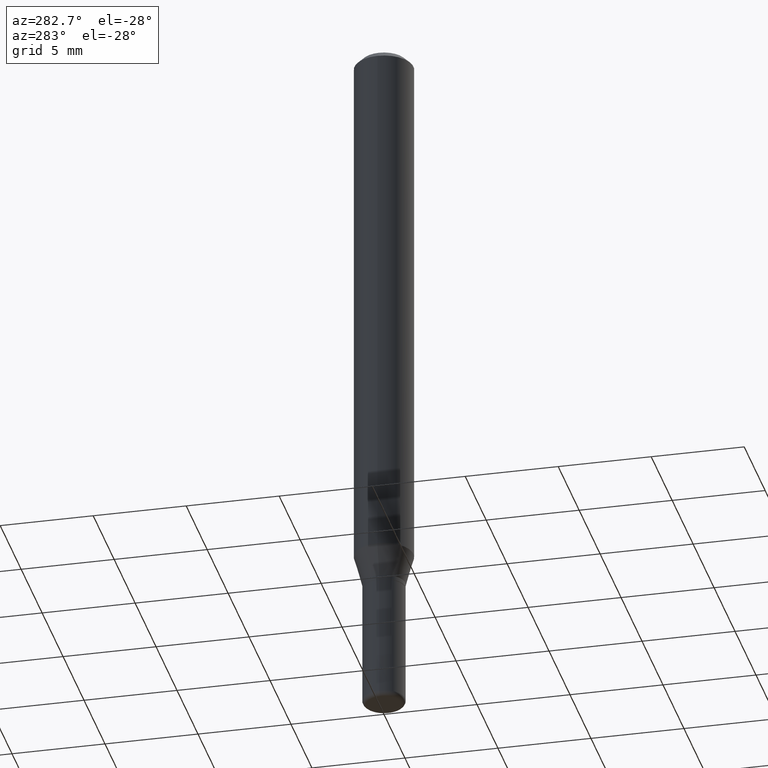
[diagram: clean part render]
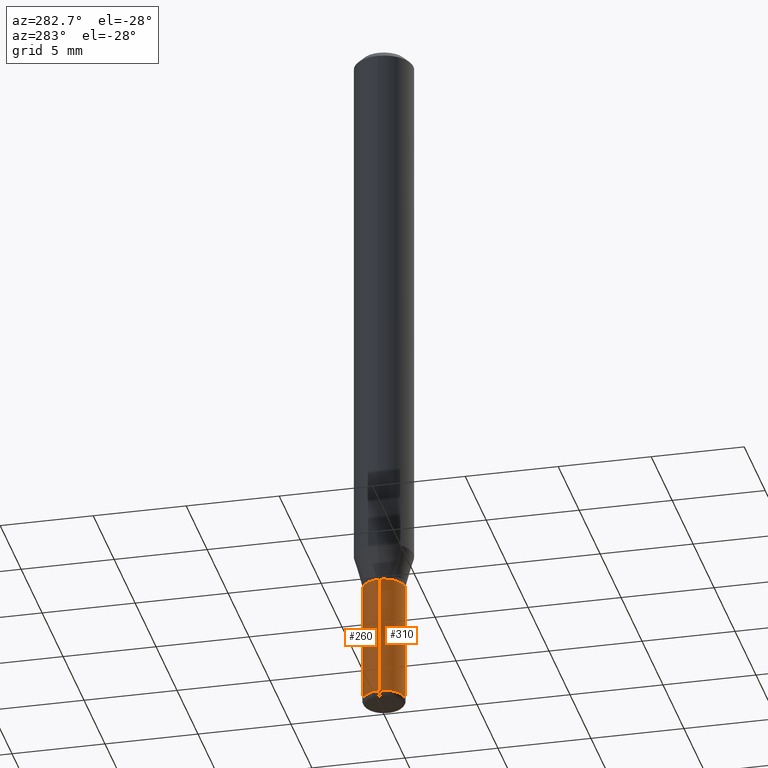
[diagram: same view with one multi-face feature highlighted, each face labeled with its STEP entity id]
A machine part, auxiliary view. The highlighted faces form ONE feature: a constant-radius fillet chain: 2 tangent blend faces with common blend radius 1.143 mm. The faces share edges in the B-rep.
Their STEP definitions:
[1] entity #310 (Cylinder):
#3 = EDGE_CURVE ( 'NONE', #106, #59, #79, .T. ) ;
#59 = VERTEX_POINT ( 'NONE', #446 ) ;
#62 = VECTOR ( 'NONE', #102, 39.37007874015748143 ) ;
#68 = CYLINDRICAL_SURFACE ( 'NONE', #187, 0.04499999999999997058 ) ;
#69 = CARTESIAN_POINT ( 'NONE',  ( -0.04499999999999997058, 3.197442310920448746E-16, -2.213520790614706158E-30 ) ) ;
#79 = LINE ( 'NONE', #69, #406 ) ;
#86 = DIRECTION ( 'NONE',  ( 1.000000000000000000, -6.982962677686269077E-15, 0.000000000000000000 ) ) ;
#95 = CIRCLE ( 'NONE', #213, 0.04499999999999994976 ) ;
#97 = EDGE_CURVE ( 'NONE', #468, #377, #322, .T. ) ;
#102 = DIRECTION ( 'NONE',  ( -2.445468806185136877E-29, 3.491481338843145188E-15, 1.000000000000000000 ) ) ;
#106 = VERTEX_POINT ( 'NONE', #204 ) ;
#114 = ORIENTED_EDGE ( 'NONE', *, *, #383, .F. ) ;
#116 = FACE_OUTER_BOUND ( 'NONE', #510, .T. ) ;
#143 = ORIENTED_EDGE ( 'NONE', *, *, #3, .F. ) ;
#155 = EDGE_CURVE ( 'NONE', #106, #468, #95, .T. ) ;
#156 = DIRECTION ( 'NONE',  ( 1.000000000000000000, -6.982962677686267499E-15, 4.876176775795935793E-29 ) ) ;
#157 = DIRECTION ( 'NONE',  ( -2.445468806185136877E-29, 3.491481338843145188E-15, 1.000000000000000000 ) ) ;
#162 = DIRECTION ( 'NONE',  ( -2.445468806185136597E-29, 3.491481338843145583E-15, 1.000000000000000000 ) ) ;
#187 = AXIS2_PLACEMENT_3D ( 'NONE', #346, #512, #156 ) ;
#195 = CARTESIAN_POINT ( 'NONE',  ( 3.643748521215853910E-29, -5.202307194876288105E-15, -1.490000000000000213 ) ) ;
#204 = CARTESIAN_POINT ( 'NONE',  ( -0.04499999999999994976, -4.428670389734633666E-15, -1.490000000000000213 ) ) ;
#213 = AXIS2_PLACEMENT_3D ( 'NONE', #195, #162, #479 ) ;
#271 = ORIENTED_EDGE ( 'NONE', *, *, #97, .T. ) ;
#285 = CARTESIAN_POINT ( 'NONE',  ( 0.04499999999999999833, -4.608755367272951648E-15, -1.230000000000000204 ) ) ;
#310 = ADVANCED_FACE ( 'NONE', ( #116 ), #68, .T. ) ;
#316 = CARTESIAN_POINT ( 'NONE',  ( 3.007926631607718216E-29, -4.294522046777069173E-15, -1.230000000000000204 ) ) ;
#322 = LINE ( 'NONE', #492, #62 ) ;
#346 = CARTESIAN_POINT ( 'NONE',  ( 0.000000000000000000, 0.000000000000000000, 0.000000000000000000 ) ) ;
#377 = VERTEX_POINT ( 'NONE', #285 ) ;
#380 = AXIS2_PLACEMENT_3D ( 'NONE', #316, #456, #86 ) ;
#383 = EDGE_CURVE ( 'NONE', #59, #377, #474, .T. ) ;
#406 = VECTOR ( 'NONE', #157, 39.37007874015748143 ) ;
#440 = ORIENTED_EDGE ( 'NONE', *, *, #155, .T. ) ;
#446 = CARTESIAN_POINT ( 'NONE',  ( -0.04500000000000000527, -4.428670389734633666E-15, -1.230000000000000204 ) ) ;
#456 = DIRECTION ( 'NONE',  ( -2.445468806185136597E-29, 3.491481338843145583E-15, 1.000000000000000000 ) ) ;
#461 = CARTESIAN_POINT ( 'NONE',  ( 0.04499999999999994976, -5.516540515372169792E-15, -1.490000000000000213 ) ) ;
#468 = VERTEX_POINT ( 'NONE', #461 ) ;
#474 = CIRCLE ( 'NONE', #380, 0.04499999999999999833 ) ;
#479 = DIRECTION ( 'NONE',  ( 1.000000000000000000, -6.982962677686276177E-15, 0.000000000000000000 ) ) ;
#492 = CARTESIAN_POINT ( 'NONE',  ( 0.04499999999999997058, -3.142333204958818343E-16, 2.194279549108169565E-30 ) ) ;
#510 = EDGE_LOOP ( 'NONE', ( #143, #440, #271, #114 ) ) ;
#512 = DIRECTION ( 'NONE',  ( -2.445468806185136597E-29, 3.491481338843145583E-15, 1.000000000000000000 ) ) ;
[2] entity #260 (Cylinder):
#3 = EDGE_CURVE ( 'NONE', #106, #59, #79, .T. ) ;
#54 = AXIS2_PLACEMENT_3D ( 'NONE', #107, #263, #428 ) ;
#57 = AXIS2_PLACEMENT_3D ( 'NONE', #172, #207, #324 ) ;
#59 = VERTEX_POINT ( 'NONE', #446 ) ;
#62 = VECTOR ( 'NONE', #102, 39.37007874015748143 ) ;
#69 = CARTESIAN_POINT ( 'NONE',  ( -0.04499999999999997058, 3.197442310920448746E-16, -2.213520790614706158E-30 ) ) ;
#79 = LINE ( 'NONE', #69, #406 ) ;
#97 = EDGE_CURVE ( 'NONE', #468, #377, #322, .T. ) ;
#102 = DIRECTION ( 'NONE',  ( -2.445468806185136877E-29, 3.491481338843145188E-15, 1.000000000000000000 ) ) ;
#106 = VERTEX_POINT ( 'NONE', #204 ) ;
#107 = CARTESIAN_POINT ( 'NONE',  ( 3.643748521215853910E-29, -5.202307194876288105E-15, -1.490000000000000213 ) ) ;
#152 = DIRECTION ( 'NONE',  ( 1.000000000000000000, -6.982962677686267499E-15, 4.876176775795935793E-29 ) ) ;
#157 = DIRECTION ( 'NONE',  ( -2.445468806185136877E-29, 3.491481338843145188E-15, 1.000000000000000000 ) ) ;
#172 = CARTESIAN_POINT ( 'NONE',  ( 3.007926631607718216E-29, -4.294522046777069173E-15, -1.230000000000000204 ) ) ;
#192 = CARTESIAN_POINT ( 'NONE',  ( 0.000000000000000000, 0.000000000000000000, 0.000000000000000000 ) ) ;
#204 = CARTESIAN_POINT ( 'NONE',  ( -0.04499999999999994976, -4.428670389734633666E-15, -1.490000000000000213 ) ) ;
#207 = DIRECTION ( 'NONE',  ( -2.445468806185136597E-29, 3.491481338843145583E-15, 1.000000000000000000 ) ) ;
#209 = ORIENTED_EDGE ( 'NONE', *, *, #219, .T. ) ;
#219 = EDGE_CURVE ( 'NONE', #468, #106, #297, .T. ) ;
#260 = ADVANCED_FACE ( 'NONE', ( #422 ), #309, .T. ) ;
#263 = DIRECTION ( 'NONE',  ( -2.445468806185136597E-29, 3.491481338843145583E-15, 1.000000000000000000 ) ) ;
#283 = CIRCLE ( 'NONE', #57, 0.04499999999999999833 ) ;
#285 = CARTESIAN_POINT ( 'NONE',  ( 0.04499999999999999833, -4.608755367272951648E-15, -1.230000000000000204 ) ) ;
#297 = CIRCLE ( 'NONE', #54, 0.04499999999999994976 ) ;
#308 = ORIENTED_EDGE ( 'NONE', *, *, #97, .F. ) ;
#309 = CYLINDRICAL_SURFACE ( 'NONE', #441, 0.04499999999999997058 ) ;
#322 = LINE ( 'NONE', #492, #62 ) ;
#324 = DIRECTION ( 'NONE',  ( 1.000000000000000000, -6.982962677686269077E-15, 0.000000000000000000 ) ) ;
#343 = DIRECTION ( 'NONE',  ( -2.445468806185136597E-29, 3.491481338843145583E-15, 1.000000000000000000 ) ) ;
#364 = EDGE_CURVE ( 'NONE', #377, #59, #283, .T. ) ;
#377 = VERTEX_POINT ( 'NONE', #285 ) ;
#381 = ORIENTED_EDGE ( 'NONE', *, *, #364, .F. ) ;
#406 = VECTOR ( 'NONE', #157, 39.37007874015748143 ) ;
#422 = FACE_OUTER_BOUND ( 'NONE', #513, .T. ) ;
#428 = DIRECTION ( 'NONE',  ( 1.000000000000000000, -6.982962677686276177E-15, 0.000000000000000000 ) ) ;
#441 = AXIS2_PLACEMENT_3D ( 'NONE', #192, #343, #152 ) ;
#446 = CARTESIAN_POINT ( 'NONE',  ( -0.04500000000000000527, -4.428670389734633666E-15, -1.230000000000000204 ) ) ;
#461 = CARTESIAN_POINT ( 'NONE',  ( 0.04499999999999994976, -5.516540515372169792E-15, -1.490000000000000213 ) ) ;
#468 = VERTEX_POINT ( 'NONE', #461 ) ;
#480 = ORIENTED_EDGE ( 'NONE', *, *, #3, .T. ) ;
#492 = CARTESIAN_POINT ( 'NONE',  ( 0.04499999999999997058, -3.142333204958818343E-16, 2.194279549108169565E-30 ) ) ;
#513 = EDGE_LOOP ( 'NONE', ( #209, #480, #381, #308 ) ) ;